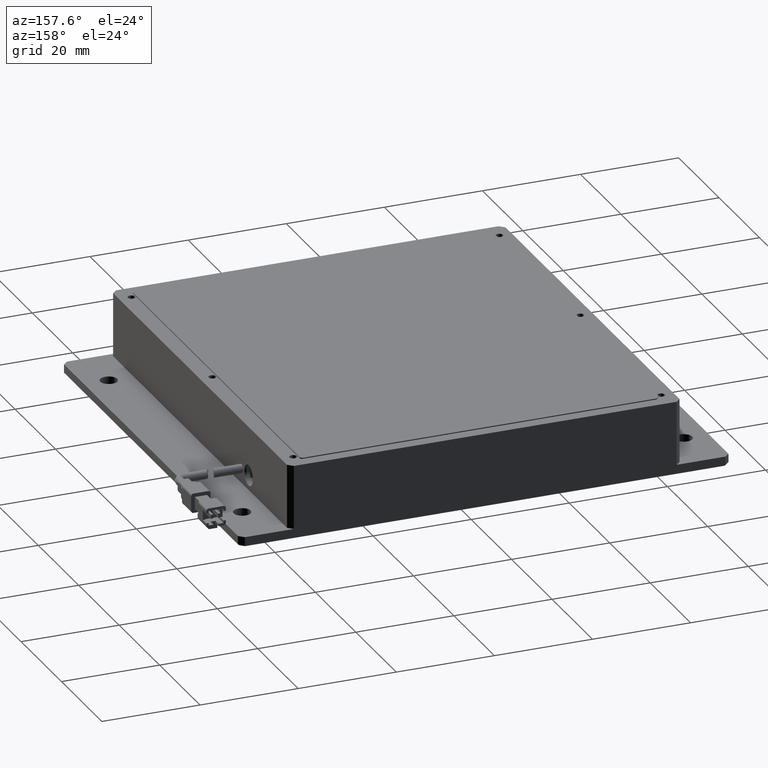
[diagram: clean part render]
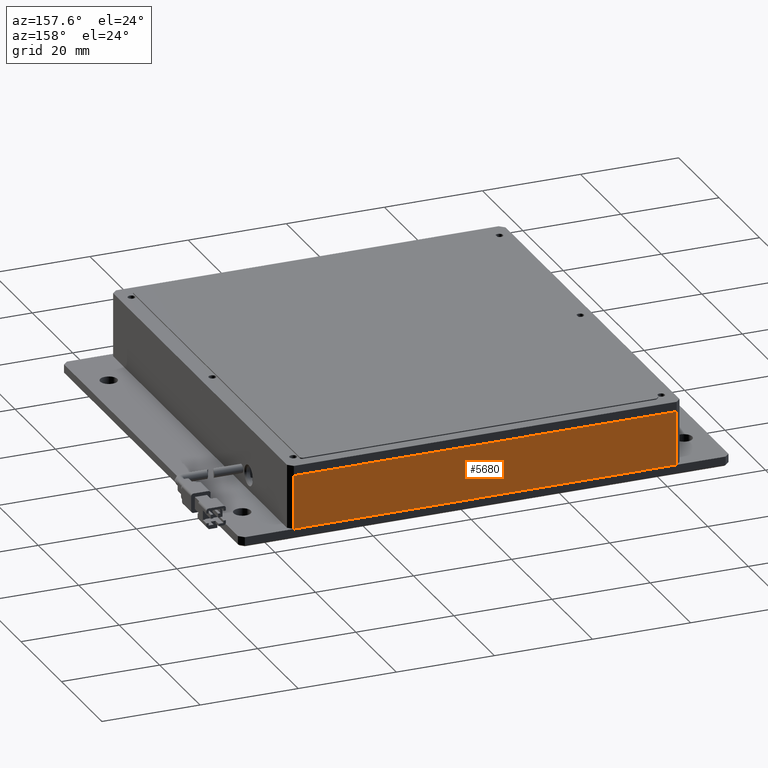
[diagram: same view with one face highlighted and labeled with its STEP entity id]
A machine part, auxiliary view. The second image highlights one B-rep face of the part: STEP entity #5680.
In plain terms, the highlighted planar face has unit normal (0, -1, 0).
Its self-contained STEP definition (entity closure, byte-faithful):
#38 = CARTESIAN_POINT ( 'NONE',  ( -22.94768995799924800, 39.79992363497522200, 10.99999999999545100 ) ) ;
#271 = VECTOR ( 'NONE', #12264, 1000.000000000000000 ) ;
#932 = EDGE_CURVE ( 'NONE', #12122, #12230, #2225, .T. ) ;
#1426 = DIRECTION ( 'NONE',  ( 0.0000000000000000000, -0.0000000000000000000, -1.000000000000000000 ) ) ;
#2225 = LINE ( 'NONE', #14281, #5960 ) ;
#3001 = EDGE_CURVE ( 'NONE', #12122, #16753, #7738, .T. ) ;
#3019 = VECTOR ( 'NONE', #10377, 1000.000000000000000 ) ;
#3519 = ORIENTED_EDGE ( 'NONE', *, *, #16166, .F. ) ;
#3788 = LINE ( 'NONE', #4106, #7513 ) ;
#4106 = CARTESIAN_POINT ( 'NONE',  ( 56.05231004200076200, 39.79992363497522200, 10.99999999999545100 ) ) ;
#5485 = DIRECTION ( 'NONE',  ( -0.0000000000000000000, 0.0000000000000000000, 1.000000000000000000 ) ) ;
#5680 = ADVANCED_FACE ( 'NONE', ( #9153 ), #12390, .F. ) ;
#5704 = AXIS2_PLACEMENT_3D ( 'NONE', #38, #9751, #1426 ) ;
#5960 = VECTOR ( 'NONE', #14234, 1000.000000000000000 ) ;
#7513 = VECTOR ( 'NONE', #5485, 1000.000000000000000 ) ;
#7738 = LINE ( 'NONE', #13434, #271 ) ;
#8472 = EDGE_LOOP ( 'NONE', ( #9864, #12799, #8943, #3519 ) ) ;
#8497 = VERTEX_POINT ( 'NONE', #11873 ) ;
#8943 = ORIENTED_EDGE ( 'NONE', *, *, #14753, .F. ) ;
#8956 = CARTESIAN_POINT ( 'NONE',  ( -21.94768995799926300, 39.79992363497522200, -4.550179677487165000E-012 ) ) ;
#9153 = FACE_OUTER_BOUND ( 'NONE', #8472, .T. ) ;
#9751 = DIRECTION ( 'NONE',  ( 0.0000000000000000000, -1.000000000000000000, 0.0000000000000000000 ) ) ;
#9864 = ORIENTED_EDGE ( 'NONE', *, *, #3001, .F. ) ;
#10377 = DIRECTION ( 'NONE',  ( 1.000000000000000000, 0.0000000000000000000, 0.0000000000000000000 ) ) ;
#10435 = CARTESIAN_POINT ( 'NONE',  ( -22.94768995799924800, 39.79992363497522200, -4.547577592273199800E-012 ) ) ;
#11215 = CARTESIAN_POINT ( 'NONE',  ( -21.94768995799926300, 39.79992363497522200, 10.99999999999545100 ) ) ;
#11873 = CARTESIAN_POINT ( 'NONE',  ( 56.05231004200076200, 39.79992363497522200, -4.548878634880182400E-012 ) ) ;
#12122 = VERTEX_POINT ( 'NONE', #11215 ) ;
#12230 = VERTEX_POINT ( 'NONE', #16760 ) ;
#12264 = DIRECTION ( 'NONE',  ( 0.0000000000000000000, -0.0000000000000000000, -1.000000000000000000 ) ) ;
#12390 = PLANE ( 'NONE',  #5704 ) ;
#12799 = ORIENTED_EDGE ( 'NONE', *, *, #932, .T. ) ;
#13434 = CARTESIAN_POINT ( 'NONE',  ( -21.94768995799926300, 39.79992363497522200, 10.99999999999545100 ) ) ;
#13921 = LINE ( 'NONE', #10435, #3019 ) ;
#14234 = DIRECTION ( 'NONE',  ( 1.000000000000000000, -0.0000000000000000000, 0.0000000000000000000 ) ) ;
#14281 = CARTESIAN_POINT ( 'NONE',  ( -22.94768995799924800, 39.79992363497522200, 10.99999999999545100 ) ) ;
#14753 = EDGE_CURVE ( 'NONE', #8497, #12230, #3788, .T. ) ;
#16166 = EDGE_CURVE ( 'NONE', #16753, #8497, #13921, .T. ) ;
#16753 = VERTEX_POINT ( 'NONE', #8956 ) ;
#16760 = CARTESIAN_POINT ( 'NONE',  ( 56.05231004200073400, 39.79992363497522200, 10.99999999999545100 ) ) ;